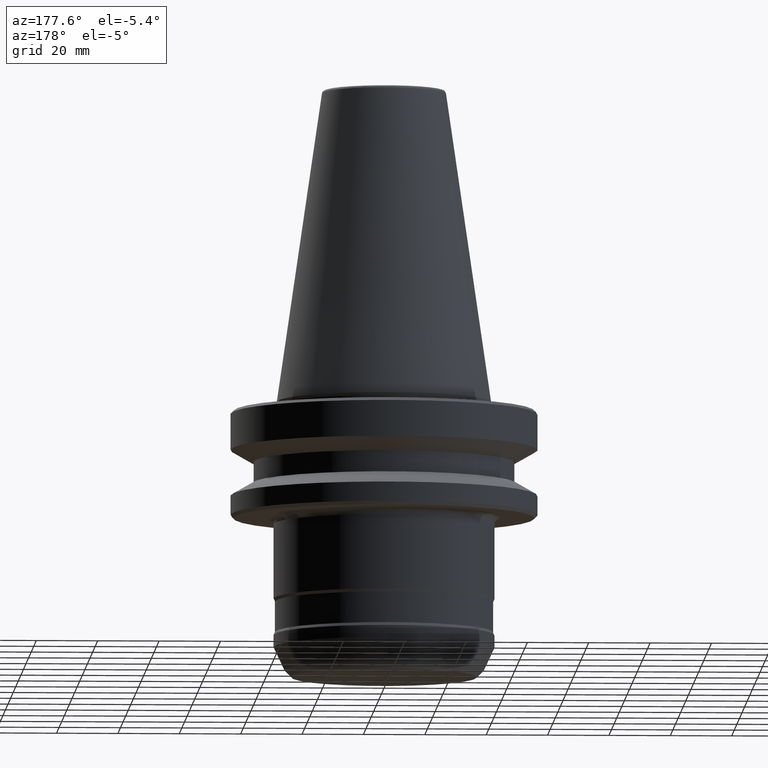
[diagram: clean part render]
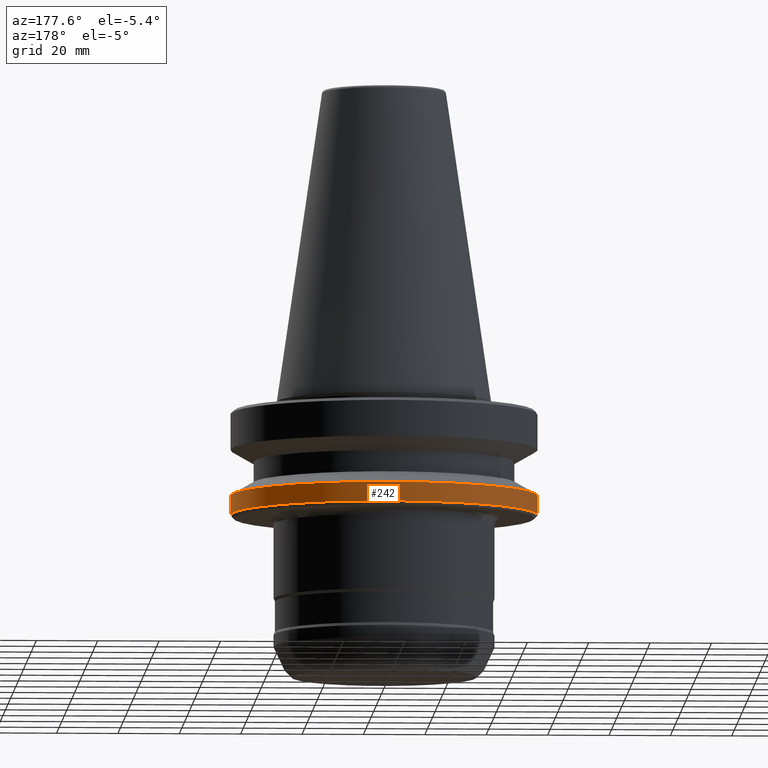
[diagram: same view with one face highlighted and labeled with its STEP entity id]
A machine part, auxiliary view. The second image highlights one B-rep face of the part: STEP entity #242.
In plain terms, the highlighted cylindrical surface (partial cylindrical patch) has radius 50 mm, axis along (-0, -0, 1).
Its self-contained STEP definition (entity closure, byte-faithful):
#6 = DIRECTION ( 'NONE',  ( -0.0000000000000000000, -0.0000000000000000000, 1.000000000000000000 ) ) ;
#54 = LINE ( 'NONE', #1110, #293 ) ;
#96 = ORIENTED_EDGE ( 'NONE', *, *, #98, .T. ) ;
#98 = EDGE_CURVE ( 'NONE', #198, #734, #54, .T. ) ;
#143 = EDGE_LOOP ( 'NONE', ( #196, #96, #1065, #445 ) ) ;
#152 = VERTEX_POINT ( 'NONE', #1244 ) ;
#196 = ORIENTED_EDGE ( 'NONE', *, *, #1147, .T. ) ;
#198 = VERTEX_POINT ( 'NONE', #1214 ) ;
#240 = AXIS2_PLACEMENT_3D ( 'NONE', #364, #685, #1063 ) ;
#242 = ADVANCED_FACE ( 'NONE', ( #431 ), #905, .T. ) ;
#280 = AXIS2_PLACEMENT_3D ( 'NONE', #1145, #581, #1242 ) ;
#293 = VECTOR ( 'NONE', #6, 1000.000000000000000 ) ;
#302 = VECTOR ( 'NONE', #481, 1000.000000000000000 ) ;
#356 = EDGE_CURVE ( 'NONE', #1157, #152, #531, .T. ) ;
#364 = CARTESIAN_POINT ( 'NONE',  ( 0.0000000000000000000, 0.0000000000000000000, 114.8991335799905900 ) ) ;
#374 = DIRECTION ( 'NONE',  ( 1.000000000000000000, 0.0000000000000000000, 0.0000000000000000000 ) ) ;
#431 = FACE_OUTER_BOUND ( 'NONE', #143, .T. ) ;
#445 = ORIENTED_EDGE ( 'NONE', *, *, #356, .F. ) ;
#446 = EDGE_CURVE ( 'NONE', #152, #734, #1193, .T. ) ;
#481 = DIRECTION ( 'NONE',  ( -0.0000000000000000000, -0.0000000000000000000, 1.000000000000000000 ) ) ;
#505 = CARTESIAN_POINT ( 'NONE',  ( 50.00000000323012000, 0.0000000000000000000, 114.8991335799905900 ) ) ;
#531 = LINE ( 'NONE', #505, #302 ) ;
#545 = CARTESIAN_POINT ( 'NONE',  ( -50.00000000323013400, 6.123233996132342800E-015, -30.69977999678742700 ) ) ;
#572 = DIRECTION ( 'NONE',  ( -0.0000000000000000000, -0.0000000000000000000, 1.000000000000000000 ) ) ;
#581 = DIRECTION ( 'NONE',  ( -0.0000000000000000000, -0.0000000000000000000, 1.000000000000000000 ) ) ;
#685 = DIRECTION ( 'NONE',  ( -0.0000000000000000000, -0.0000000000000000000, 1.000000000000000000 ) ) ;
#702 = CARTESIAN_POINT ( 'NONE',  ( 0.0000000000000000000, 0.0000000000000000000, -30.69977999678742700 ) ) ;
#734 = VERTEX_POINT ( 'NONE', #545 ) ;
#905 = CYLINDRICAL_SURFACE ( 'NONE', #240, 50.00000000323012000 ) ;
#1056 = CARTESIAN_POINT ( 'NONE',  ( 50.00000000323011300, 0.0000000000000000000, -37.00000000001458700 ) ) ;
#1063 = DIRECTION ( 'NONE',  ( 1.000000000000000000, 0.0000000000000000000, 0.0000000000000000000 ) ) ;
#1065 = ORIENTED_EDGE ( 'NONE', *, *, #446, .F. ) ;
#1085 = AXIS2_PLACEMENT_3D ( 'NONE', #702, #572, #374 ) ;
#1110 = CARTESIAN_POINT ( 'NONE',  ( -50.00000000323012000, 6.123233996132341200E-015, 114.8991335799905900 ) ) ;
#1145 = CARTESIAN_POINT ( 'NONE',  ( 0.0000000000000000000, 0.0000000000000000000, -37.00000000001458700 ) ) ;
#1147 = EDGE_CURVE ( 'NONE', #1157, #198, #1205, .T. ) ;
#1157 = VERTEX_POINT ( 'NONE', #1056 ) ;
#1193 = CIRCLE ( 'NONE', #1085, 50.00000000323012700 ) ;
#1205 = CIRCLE ( 'NONE', #280, 50.00000000323011300 ) ;
#1214 = CARTESIAN_POINT ( 'NONE',  ( -50.00000000323011300, 6.123233996132341200E-015, -37.00000000001458700 ) ) ;
#1242 = DIRECTION ( 'NONE',  ( 1.000000000000000000, 0.0000000000000000000, 0.0000000000000000000 ) ) ;
#1244 = CARTESIAN_POINT ( 'NONE',  ( 50.00000000323012700, 0.0000000000000000000, -30.69977999678742700 ) ) ;